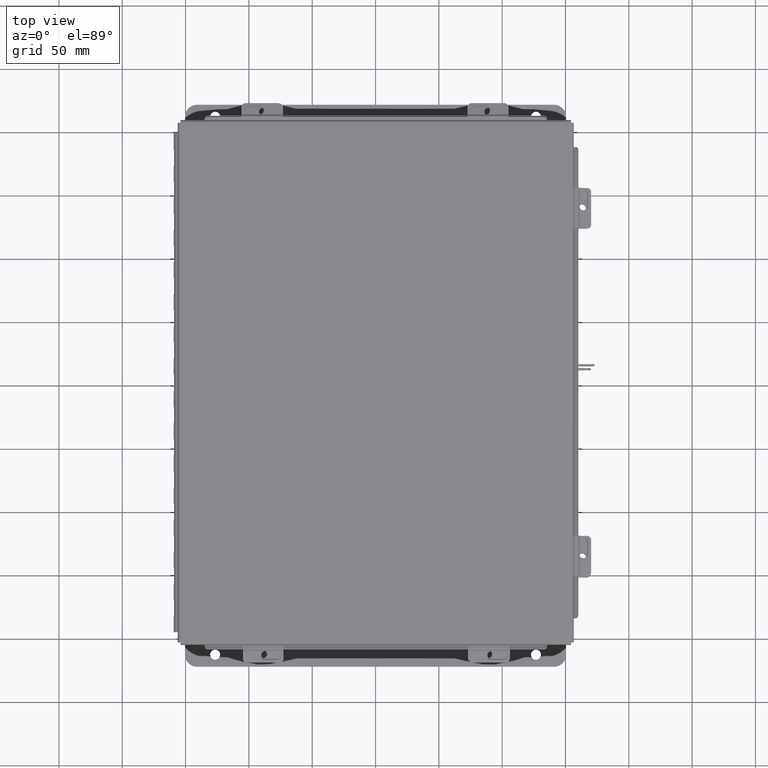
[diagram: clean part render]
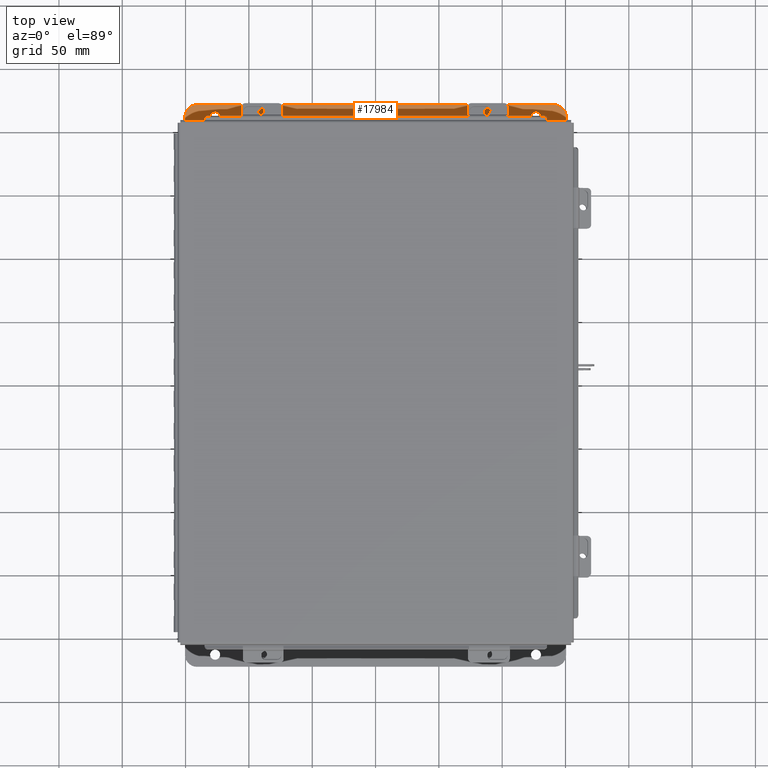
[diagram: same view with one face highlighted and labeled with its STEP entity id]
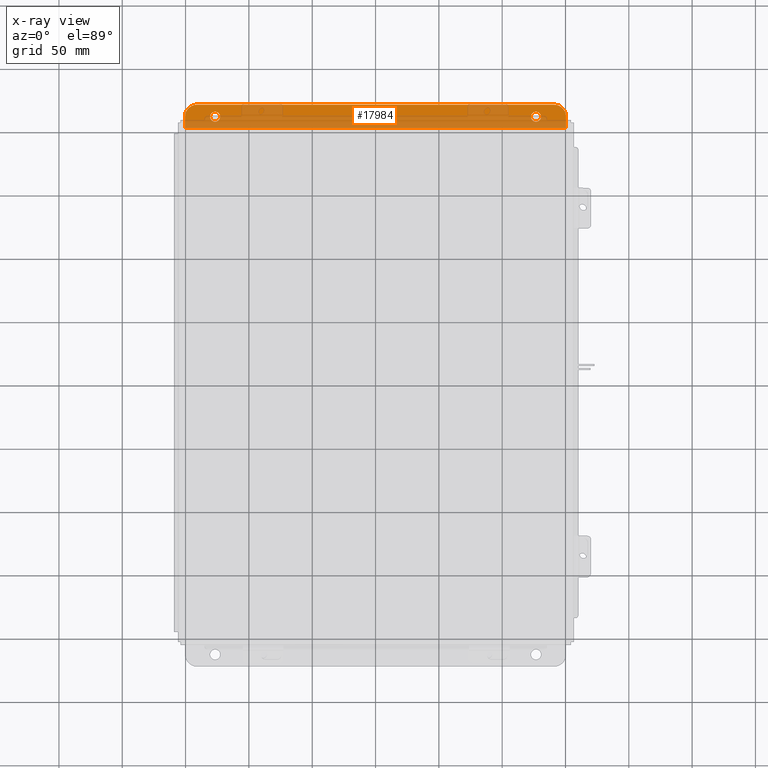
[diagram: x-ray of the same camera — body ghosted, the highlighted face saturated]
A machine part, top view. The second image highlights one B-rep face of the part: STEP entity #17984.
The next image is the same camera in x-ray: the body ghosted, the highlighted face saturated — about 61% of this face is hidden behind the body in this view.
In plain terms, the highlighted planar face has unit normal (0, 0, 1).
Its self-contained STEP definition (entity closure, byte-faithful):
#151 = DIRECTION ( 'NONE',  ( 0.0000000000000000000, -1.000000000000000000, 3.502369222646487400E-015 ) ) ;
#255 = DIRECTION ( 'NONE',  ( -0.0000000000000000000, -3.702694488566362300E-015, -1.000000000000000000 ) ) ;
#984 = EDGE_CURVE ( 'NONE', #5512, #16486, #11615, .T. ) ;
#1100 = VERTEX_POINT ( 'NONE', #16165 ) ;
#1253 = DIRECTION ( 'NONE',  ( 0.0000000000000000000, -1.000000000000000000, 3.702694488566362300E-015 ) ) ;
#1284 = ORIENTED_EDGE ( 'NONE', *, *, #984, .F. ) ;
#1547 = DIRECTION ( 'NONE',  ( 0.0000000000000000000, -1.000000000000000000, 4.370956789862820400E-015 ) ) ;
#1618 = CARTESIAN_POINT ( 'NONE',  ( -4.987800000000000900, 0.2067999999999996000, -3.112300000000000700 ) ) ;
#1680 = LINE ( 'NONE', #6052, #12081 ) ;
#1781 = CIRCLE ( 'NONE', #14672, 0.1560000000000001700 ) ;
#2046 = VECTOR ( 'NONE', #5353, 39.37007874015748100 ) ;
#2206 = VECTOR ( 'NONE', #19525, 39.37007874015748100 ) ;
#2697 = LINE ( 'NONE', #12061, #2206 ) ;
#2838 = CARTESIAN_POINT ( 'NONE',  ( 4.987799999999998200, 0.3627999999999997300, -3.112300000000001200 ) ) ;
#3747 = DIRECTION ( 'NONE',  ( 0.0000000000000000000, 3.702694488566362300E-015, 1.000000000000000000 ) ) ;
#3805 = VERTEX_POINT ( 'NONE', #18411 ) ;
#3849 = VECTOR ( 'NONE', #18598, 39.37007874015748100 ) ;
#4375 = DIRECTION ( 'NONE',  ( 0.0000000000000000000, -1.000000000000000000, 3.502369222646487400E-015 ) ) ;
#4476 = ORIENTED_EDGE ( 'NONE', *, *, #18626, .T. ) ;
#4690 = VERTEX_POINT ( 'NONE', #13442 ) ;
#4860 = EDGE_CURVE ( 'NONE', #4690, #5512, #2697, .T. ) ;
#4966 = CARTESIAN_POINT ( 'NONE',  ( 4.987799999999998200, 0.2067999999999996000, -3.112300000000000700 ) ) ;
#5045 = CIRCLE ( 'NONE', #16159, 0.1560000000000001700 ) ;
#5353 = DIRECTION ( 'NONE',  ( 1.000000000000000000, -0.0000000000000000000, -0.0000000000000000000 ) ) ;
#5470 = VERTEX_POINT ( 'NONE', #18922 ) ;
#5490 = CIRCLE ( 'NONE', #20088, 0.3750000000000000600 ) ;
#5512 = VERTEX_POINT ( 'NONE', #7577 ) ;
#6052 = CARTESIAN_POINT ( 'NONE',  ( -5.925300000000001800, 0.7378000000000000100, -3.112300000000003000 ) ) ;
#6825 = EDGE_CURVE ( 'NONE', #16486, #5470, #1680, .T. ) ;
#7256 = CARTESIAN_POINT ( 'NONE',  ( 4.987799999999998200, 0.5187999999999999300, -3.112300000000001600 ) ) ;
#7577 = CARTESIAN_POINT ( 'NONE',  ( 5.925299999999999100, 0.01300000000000010700, -3.112299999999999800 ) ) ;
#8348 = DIRECTION ( 'NONE',  ( -0.0000000000000000000, -3.702694488566362300E-015, -1.000000000000000000 ) ) ;
#9027 = CARTESIAN_POINT ( 'NONE',  ( -4.987800000000000900, 0.5187999999999999300, -3.112300000000001600 ) ) ;
#9260 = VERTEX_POINT ( 'NONE', #1618 ) ;
#9454 = DIRECTION ( 'NONE',  ( -0.0000000000000000000, -3.702694488566362300E-015, -1.000000000000000000 ) ) ;
#9511 = ORIENTED_EDGE ( 'NONE', *, *, #6825, .F. ) ;
#9547 = CARTESIAN_POINT ( 'NONE',  ( -4.987800000000000900, 0.3627999999999997300, -3.112300000000001200 ) ) ;
#9843 = CARTESIAN_POINT ( 'NONE',  ( 5.925299999999999100, 0.01300000000000010700, -3.112299999999999800 ) ) ;
#9873 = EDGE_CURVE ( 'NONE', #18226, #13202, #5045, .T. ) ;
#10517 = DIRECTION ( 'NONE',  ( 0.0000000000000000000, 3.702694488566362300E-015, 1.000000000000000000 ) ) ;
#10546 = AXIS2_PLACEMENT_3D ( 'NONE', #13047, #3747, #14618 ) ;
#10637 = VERTEX_POINT ( 'NONE', #9027 ) ;
#10831 = DIRECTION ( 'NONE',  ( 0.0000000000000000000, 3.702694488566362300E-015, 1.000000000000000000 ) ) ;
#11101 = DIRECTION ( 'NONE',  ( 0.0000000000000000000, -1.000000000000000000, 3.502369222646487400E-015 ) ) ;
#11292 = ORIENTED_EDGE ( 'NONE', *, *, #9873, .T. ) ;
#11379 = AXIS2_PLACEMENT_3D ( 'NONE', #2838, #13673, #4375 ) ;
#11455 = EDGE_CURVE ( 'NONE', #4690, #1100, #5490, .T. ) ;
#11615 = LINE ( 'NONE', #9843, #3849 ) ;
#11925 = EDGE_LOOP ( 'NONE', ( #15838, #4476 ) ) ;
#11979 = FACE_BOUND ( 'NONE', #11925, .T. ) ;
#12061 = CARTESIAN_POINT ( 'NONE',  ( 5.925299999999999100, 0.0000000000000000000, -3.112299999999999800 ) ) ;
#12081 = VECTOR ( 'NONE', #14381, 39.37007874015748100 ) ;
#12256 = ORIENTED_EDGE ( 'NONE', *, *, #17467, .T. ) ;
#12285 = EDGE_CURVE ( 'NONE', #3805, #5470, #13733, .T. ) ;
#13047 = CARTESIAN_POINT ( 'NONE',  ( -5.550299999999999100, 0.3628000000000008400, -3.112300000000001200 ) ) ;
#13163 = CARTESIAN_POINT ( 'NONE',  ( 5.550299999999999100, 0.3627999999999997300, -3.112300000000001200 ) ) ;
#13202 = VERTEX_POINT ( 'NONE', #7256 ) ;
#13442 = CARTESIAN_POINT ( 'NONE',  ( 5.925299999999999100, 0.3627999999999997300, -3.112300000000001200 ) ) ;
#13614 = EDGE_CURVE ( 'NONE', #3805, #1100, #18084, .T. ) ;
#13673 = DIRECTION ( 'NONE',  ( -0.0000000000000000000, -3.702694488566362300E-015, -1.000000000000000000 ) ) ;
#13733 = CIRCLE ( 'NONE', #10546, 0.3750000000000000600 ) ;
#13928 = ORIENTED_EDGE ( 'NONE', *, *, #12285, .T. ) ;
#14381 = DIRECTION ( 'NONE',  ( -0.0000000000000000000, 1.000000000000000000, -3.702694488566362300E-015 ) ) ;
#14618 = DIRECTION ( 'NONE',  ( 0.0000000000000000000, -1.000000000000000000, 4.370956789862820400E-015 ) ) ;
#14648 = CARTESIAN_POINT ( 'NONE',  ( 5.925299999999999100, 0.7378000000000000100, -3.112300000000003000 ) ) ;
#14672 = AXIS2_PLACEMENT_3D ( 'NONE', #17668, #8348, #19257 ) ;
#15278 = CIRCLE ( 'NONE', #11379, 0.1560000000000001700 ) ;
#15299 = AXIS2_PLACEMENT_3D ( 'NONE', #9547, #255, #11101 ) ;
#15663 = FACE_BOUND ( 'NONE', #18928, .T. ) ;
#15791 = CIRCLE ( 'NONE', #15299, 0.1560000000000001700 ) ;
#15836 = AXIS2_PLACEMENT_3D ( 'NONE', #18301, #10517, #1253 ) ;
#15838 = ORIENTED_EDGE ( 'NONE', *, *, #17062, .T. ) ;
#15920 = ORIENTED_EDGE ( 'NONE', *, *, #4860, .F. ) ;
#16159 = AXIS2_PLACEMENT_3D ( 'NONE', #18786, #9454, #151 ) ;
#16165 = CARTESIAN_POINT ( 'NONE',  ( 5.550299999999999100, 0.7378000000000000100, -3.112300000000003000 ) ) ;
#16409 = EDGE_LOOP ( 'NONE', ( #15920, #18607, #18814, #13928, #9511, #1284 ) ) ;
#16486 = VERTEX_POINT ( 'NONE', #19533 ) ;
#17062 = EDGE_CURVE ( 'NONE', #10637, #9260, #15791, .T. ) ;
#17467 = EDGE_CURVE ( 'NONE', #13202, #18226, #15278, .T. ) ;
#17668 = CARTESIAN_POINT ( 'NONE',  ( -4.987800000000000900, 0.3627999999999997300, -3.112300000000001200 ) ) ;
#17984 = ADVANCED_FACE ( 'NONE', ( #11979, #15663, #19804 ), #19885, .T. ) ;
#18084 = LINE ( 'NONE', #14648, #2046 ) ;
#18226 = VERTEX_POINT ( 'NONE', #4966 ) ;
#18301 = CARTESIAN_POINT ( 'NONE',  ( 0.0000000000000000000, -1.092739197465705300E-014, -3.112299999999999800 ) ) ;
#18411 = CARTESIAN_POINT ( 'NONE',  ( -5.550299999999999100, 0.7378000000000000100, -3.112300000000003000 ) ) ;
#18598 = DIRECTION ( 'NONE',  ( -1.000000000000000000, 0.0000000000000000000, 0.0000000000000000000 ) ) ;
#18607 = ORIENTED_EDGE ( 'NONE', *, *, #11455, .T. ) ;
#18626 = EDGE_CURVE ( 'NONE', #9260, #10637, #1781, .T. ) ;
#18786 = CARTESIAN_POINT ( 'NONE',  ( 4.987799999999998200, 0.3627999999999997300, -3.112300000000001200 ) ) ;
#18814 = ORIENTED_EDGE ( 'NONE', *, *, #13614, .F. ) ;
#18922 = CARTESIAN_POINT ( 'NONE',  ( -5.925300000000001800, 0.3628000000000008400, -3.112300000000001200 ) ) ;
#18928 = EDGE_LOOP ( 'NONE', ( #12256, #11292 ) ) ;
#19257 = DIRECTION ( 'NONE',  ( 0.0000000000000000000, -1.000000000000000000, 3.502369222646487400E-015 ) ) ;
#19525 = DIRECTION ( 'NONE',  ( -0.0000000000000000000, -1.000000000000000000, 3.702694488566362300E-015 ) ) ;
#19533 = CARTESIAN_POINT ( 'NONE',  ( -5.925300000000000000, 0.01300000000000010700, -3.112299999999999800 ) ) ;
#19804 = FACE_OUTER_BOUND ( 'NONE', #16409, .T. ) ;
#19885 = PLANE ( 'NONE',  #15836 ) ;
#20088 = AXIS2_PLACEMENT_3D ( 'NONE', #13163, #10831, #1547 ) ;